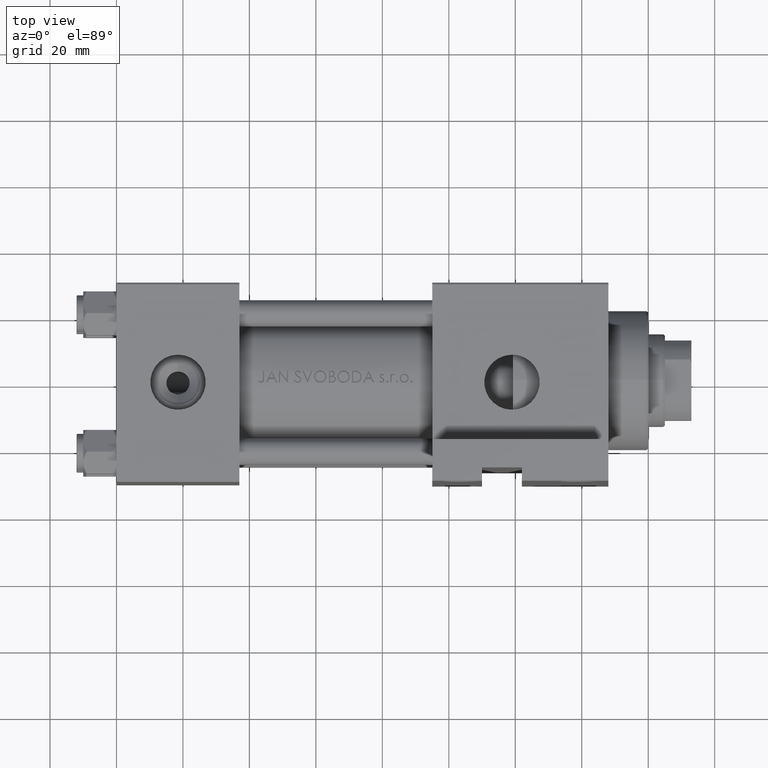
[diagram: clean part render]
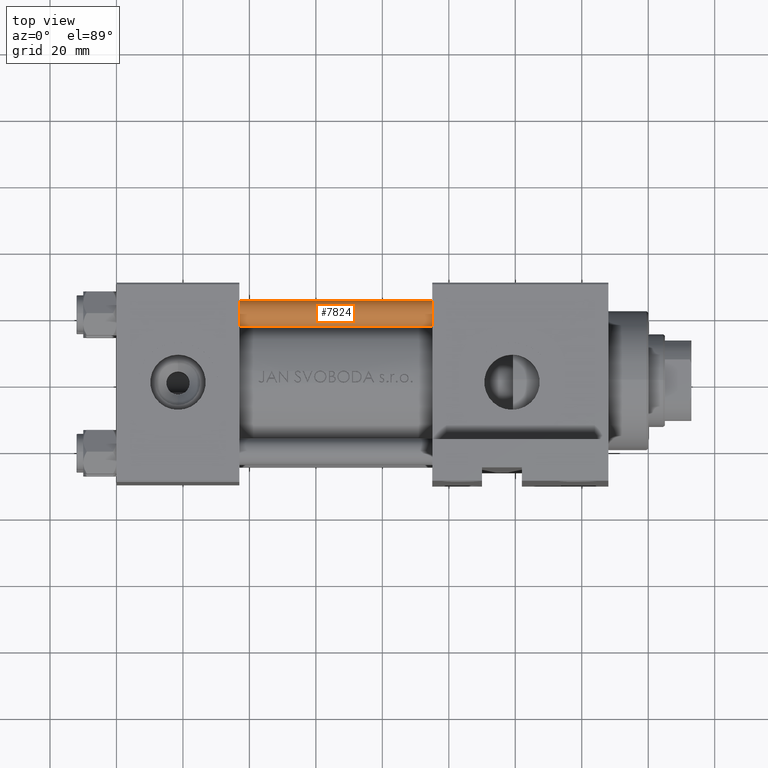
[diagram: same view with one face highlighted and labeled with its STEP entity id]
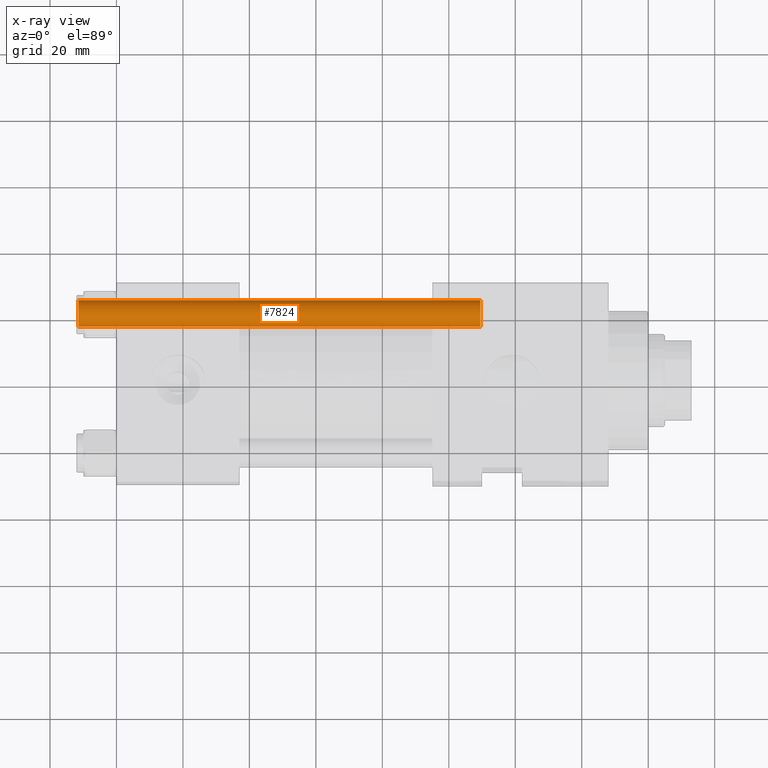
[diagram: x-ray of the same camera — body ghosted, the highlighted face saturated]
A machine part, top view. The second image highlights one B-rep face of the part: STEP entity #7824.
The next image is the same camera in x-ray: the body ghosted, the highlighted face saturated — about 0% of this face is hidden behind the body in this view.
In plain terms, the highlighted cylindrical surface (edge-blend (fillet) strip) has radius 4 mm, axis along (1, -0, 0).
Its self-contained STEP definition (entity closure, byte-faithful):
#20 = DIRECTION ( 'NONE',  ( 1.000000000000000000, 0.000000000000000000, 0.000000000000000000 ) ) ;
#1096 = CARTESIAN_POINT ( 'NONE',  ( -4.000000000000000000, 0.000000000000000000, 0.5000000000000559552 ) ) ;
#2144 = AXIS2_PLACEMENT_3D ( 'NONE', #45874, #22457, #11615 ) ;
#4272 = VERTEX_POINT ( 'NONE', #5361 ) ;
#5361 = CARTESIAN_POINT ( 'NONE',  ( 4.000000000000000000, 4.898587196589411843E-16, 0.5000000000000559552 ) ) ;
#6053 = CARTESIAN_POINT ( 'NONE',  ( -4.000000000000000000, 0.000000000000000000, 122.0000000000000000 ) ) ;
#7364 = EDGE_CURVE ( 'NONE', #25826, #36118, #16419, .T. ) ;
#7824 = ADVANCED_FACE ( 'NONE', ( #30350 ), #42175, .T. ) ;
#8624 = CARTESIAN_POINT ( 'NONE',  ( 4.000000000000000000, 4.898587196589411843E-16, 121.5000000000000426 ) ) ;
#9125 = ORIENTED_EDGE ( 'NONE', *, *, #38699, .F. ) ;
#9317 = EDGE_CURVE ( 'NONE', #37574, #25826, #13986, .T. ) ;
#11615 = DIRECTION ( 'NONE',  ( -1.000000000000000000, 0.000000000000000000, 0.000000000000000000 ) ) ;
#13986 = CIRCLE ( 'NONE', #39196, 4.000000000000000000 ) ;
#16085 = DIRECTION ( 'NONE',  ( -0.000000000000000000, -0.000000000000000000, -1.000000000000000000 ) ) ;
#16419 = LINE ( 'NONE', #6053, #17078 ) ;
#17078 = VECTOR ( 'NONE', #39823, 1000.000000000000000 ) ;
#19527 = CARTESIAN_POINT ( 'NONE',  ( 4.000000000000000000, 4.898587196589411843E-16, 122.0000000000000000 ) ) ;
#20889 = CARTESIAN_POINT ( 'NONE',  ( 0.000000000000000000, 0.000000000000000000, 0.5000000000000559552 ) ) ;
#22457 = DIRECTION ( 'NONE',  ( -0.000000000000000000, -0.000000000000000000, -1.000000000000000000 ) ) ;
#25826 = VERTEX_POINT ( 'NONE', #45176 ) ;
#26495 = VECTOR ( 'NONE', #16085, 1000.000000000000000 ) ;
#27566 = ORIENTED_EDGE ( 'NONE', *, *, #47824, .T. ) ;
#28305 = DIRECTION ( 'NONE',  ( 1.000000000000000000, 0.000000000000000000, 0.000000000000000000 ) ) ;
#30350 = FACE_OUTER_BOUND ( 'NONE', #32412, .T. ) ;
#30401 = ORIENTED_EDGE ( 'NONE', *, *, #9317, .T. ) ;
#32412 = EDGE_LOOP ( 'NONE', ( #9125, #30401, #45608, #27566 ) ) ;
#33740 = AXIS2_PLACEMENT_3D ( 'NONE', #20889, #35936, #28305 ) ;
#33773 = CARTESIAN_POINT ( 'NONE',  ( 0.000000000000000000, 0.000000000000000000, 121.5000000000000426 ) ) ;
#35341 = CIRCLE ( 'NONE', #33740, 4.000000000000000000 ) ;
#35936 = DIRECTION ( 'NONE',  ( -0.000000000000000000, -0.000000000000000000, 1.000000000000000000 ) ) ;
#36118 = VERTEX_POINT ( 'NONE', #1096 ) ;
#37574 = VERTEX_POINT ( 'NONE', #8624 ) ;
#38278 = LINE ( 'NONE', #19527, #26495 ) ;
#38699 = EDGE_CURVE ( 'NONE', #37574, #4272, #38278, .T. ) ;
#39196 = AXIS2_PLACEMENT_3D ( 'NONE', #33773, #40689, #20 ) ;
#39823 = DIRECTION ( 'NONE',  ( -0.000000000000000000, -0.000000000000000000, -1.000000000000000000 ) ) ;
#40689 = DIRECTION ( 'NONE',  ( 0.000000000000000000, 0.000000000000000000, -1.000000000000000000 ) ) ;
#42175 = CYLINDRICAL_SURFACE ( 'NONE', #2144, 4.000000000000000000 ) ;
#45176 = CARTESIAN_POINT ( 'NONE',  ( -4.000000000000000000, 0.000000000000000000, 121.5000000000000426 ) ) ;
#45608 = ORIENTED_EDGE ( 'NONE', *, *, #7364, .T. ) ;
#45874 = CARTESIAN_POINT ( 'NONE',  ( 0.000000000000000000, 0.000000000000000000, 122.0000000000000000 ) ) ;
#47824 = EDGE_CURVE ( 'NONE', #36118, #4272, #35341, .T. ) ;